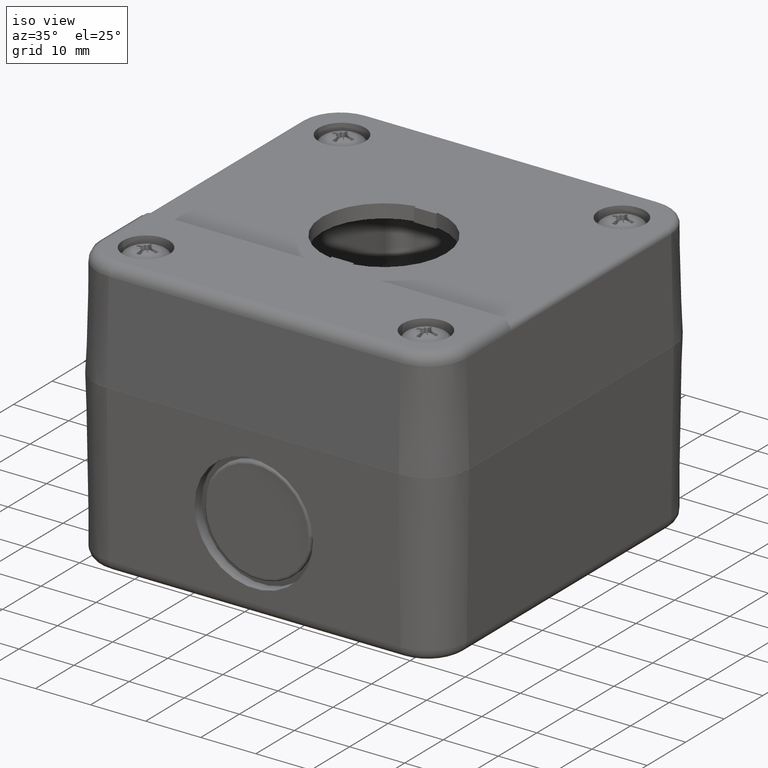
[diagram: clean part render]
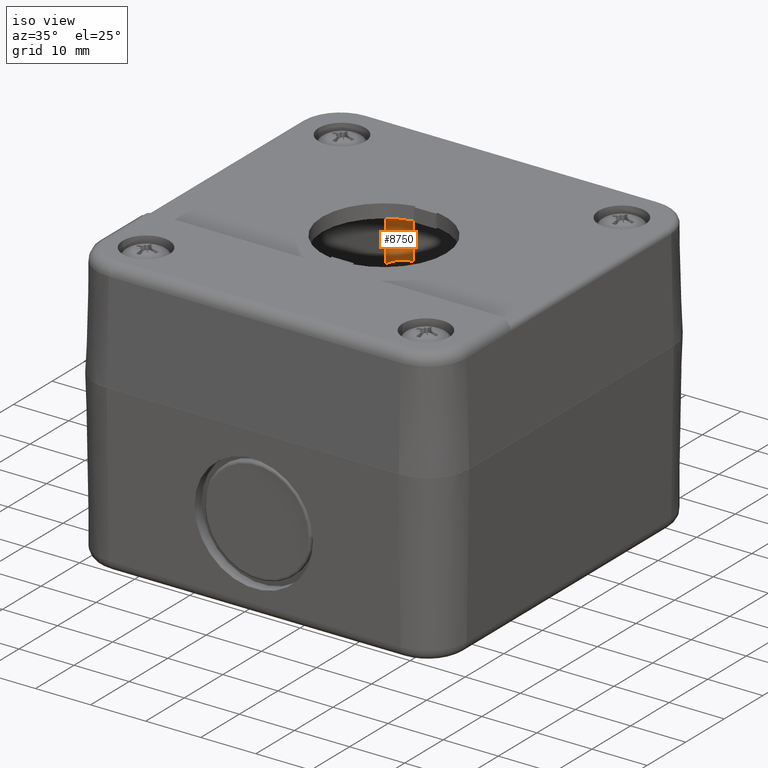
[diagram: same view with one face highlighted and labeled with its STEP entity id]
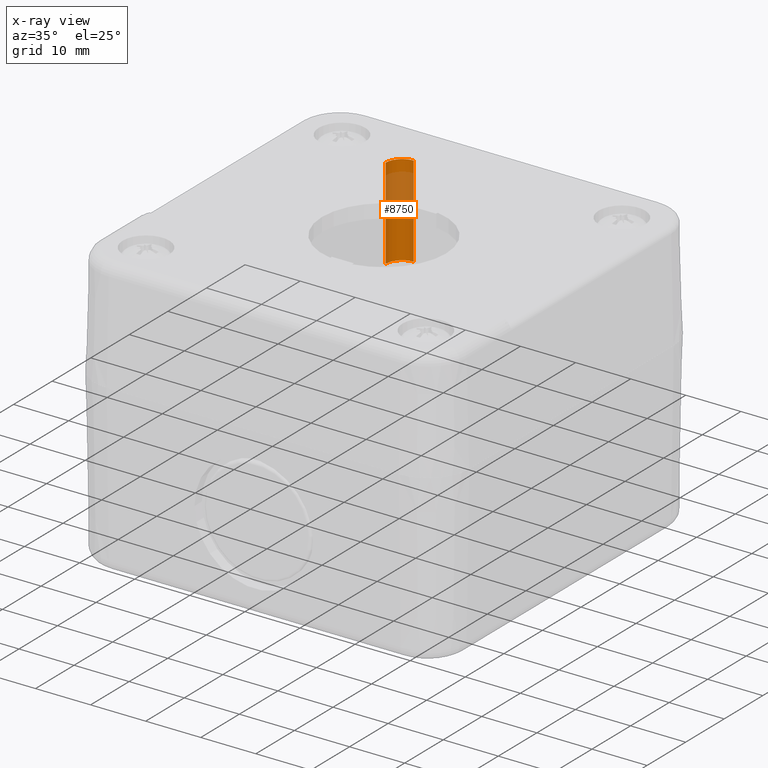
[diagram: x-ray of the same camera — body ghosted, the highlighted face saturated]
A machine part, iso view. The second image highlights one B-rep face of the part: STEP entity #8750.
The next image is the same camera in x-ray: the body ghosted, the highlighted face saturated — about 46% of this face is hidden behind the body in this view.
In plain terms, the highlighted cylindrical surface (edge-blend (fillet) strip) has radius 3 mm, axis along (-0, 0, 1).
Its self-contained STEP definition (entity closure, byte-faithful):
#8685=CARTESIAN_POINT('',(-18.433605584055147,-27.638618122439304,3.399999999999999));
#8686=VERTEX_POINT('',#8685);
#8701=CARTESIAN_POINT('',(-18.433605584055147,-27.638618122439304,20.0));
#8702=VERTEX_POINT('',#8701);
#8709=CARTESIAN_POINT('',(-18.433605584055147,-27.638618122439304,20.0));
#8710=DIRECTION('',(0.0,0.0,-1.0));
#8711=VECTOR('',#8710,16.600000000000001);
#8712=LINE('',#8709,#8711);
#8713=EDGE_CURVE('',#8702,#8686,#8712,.T.);
#8718=CARTESIAN_POINT('',(-15.433605584055147,-27.638618122439304,20.0));
#8719=DIRECTION('',(0.0,0.0,-1.0));
#8720=DIRECTION('',(1.0,0.0,0.0));
#8721=AXIS2_PLACEMENT_3D('',#8718,#8719,#8720);
#8722=CYLINDRICAL_SURFACE('',#8721,2.999999999999996);
#8723=CARTESIAN_POINT('',(-15.433605584055147,-30.638618122439304,3.399999999999999));
#8724=VERTEX_POINT('',#8723);
#8725=CARTESIAN_POINT('',(-15.433605584055147,-27.638618122439304,3.399999999999999));
#8726=DIRECTION('',(0.0,0.0,1.0));
#8727=DIRECTION('',(1.0,0.0,0.0));
#8728=AXIS2_PLACEMENT_3D('',#8725,#8726,#8727);
#8729=CIRCLE('',#8728,2.999999999999996);
#8730=EDGE_CURVE('',#8686,#8724,#8729,.T.);
#8731=ORIENTED_EDGE('',*,*,#8730,.F.);
#8732=ORIENTED_EDGE('',*,*,#8713,.F.);
#8733=CARTESIAN_POINT('',(-15.433605584055147,-30.638618122439304,20.0));
#8734=VERTEX_POINT('',#8733);
#8735=CARTESIAN_POINT('',(-15.433605584055147,-27.638618122439304,20.0));
#8736=DIRECTION('',(0.0,0.0,-1.0));
#8737=DIRECTION('',(1.0,0.0,0.0));
#8738=AXIS2_PLACEMENT_3D('',#8735,#8736,#8737);
#8739=CIRCLE('',#8738,2.999999999999996);
#8740=EDGE_CURVE('',#8734,#8702,#8739,.T.);
#8741=ORIENTED_EDGE('',*,*,#8740,.F.);
#8742=CARTESIAN_POINT('',(-15.433605584055147,-30.638618122439304,20.0));
#8743=DIRECTION('',(0.0,0.0,-1.0));
#8744=VECTOR('',#8743,16.600000000000001);
#8745=LINE('',#8742,#8744);
#8746=EDGE_CURVE('',#8734,#8724,#8745,.T.);
#8747=ORIENTED_EDGE('',*,*,#8746,.T.);
#8748=EDGE_LOOP('',(#8731,#8732,#8741,#8747));
#8749=FACE_OUTER_BOUND('',#8748,.T.);
#8750=ADVANCED_FACE('',(#8749),#8722,.F.);